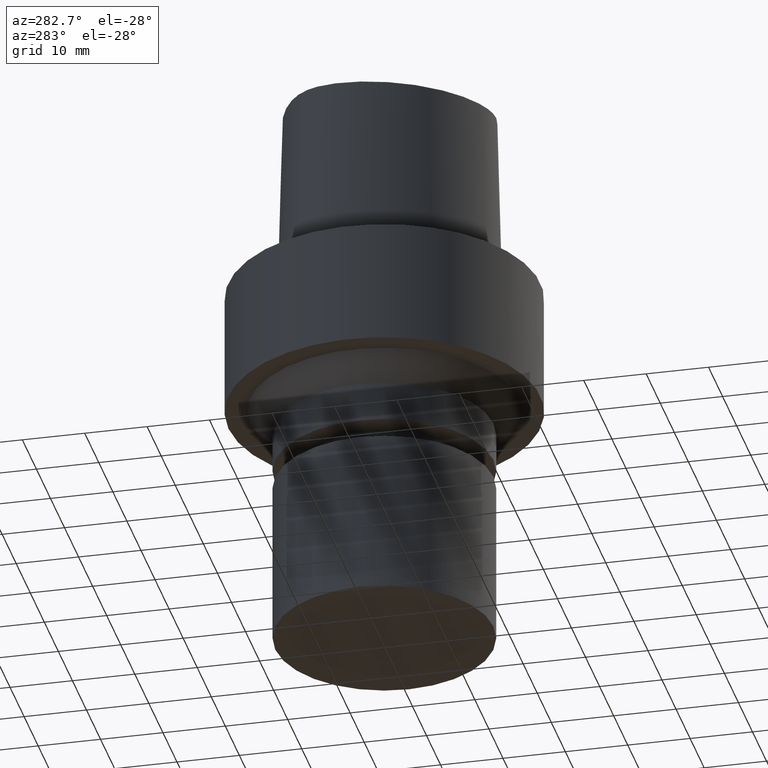
[diagram: clean part render]
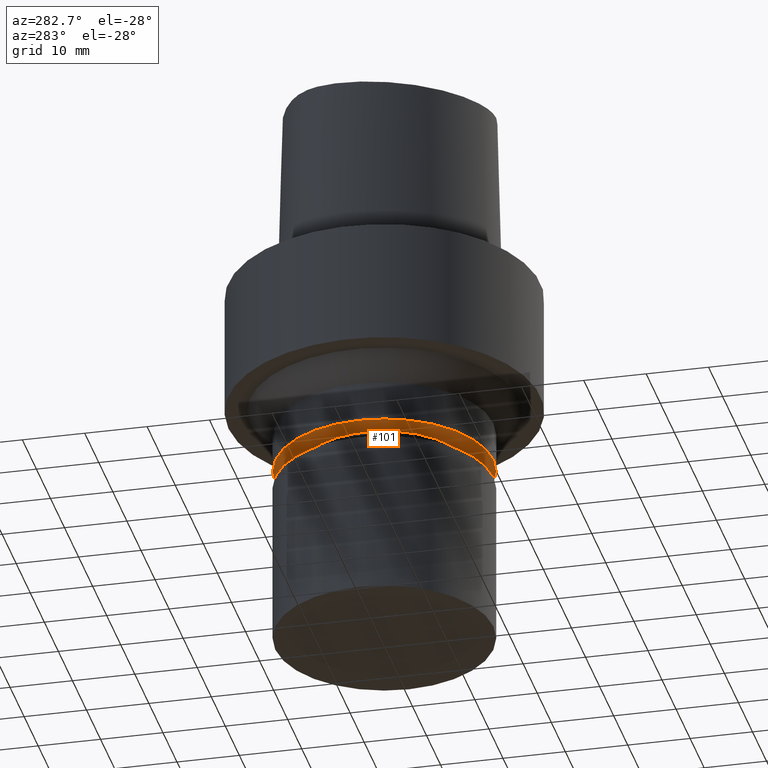
[diagram: same view with one face highlighted and labeled with its STEP entity id]
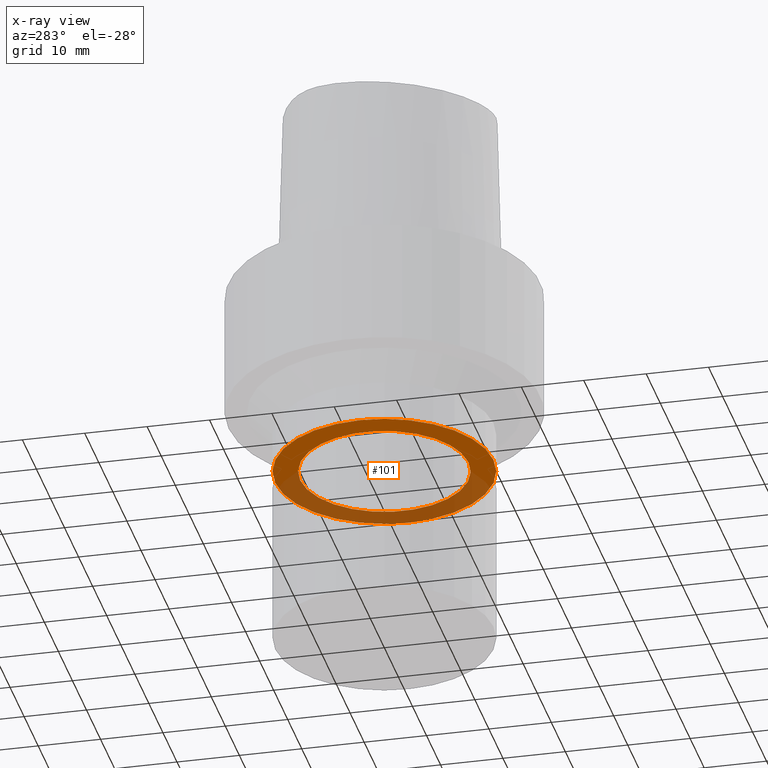
[diagram: x-ray of the same camera — body ghosted, the highlighted face saturated]
A machine part, auxiliary view. The second image highlights one B-rep face of the part: STEP entity #101.
The next image is the same camera in x-ray: the body ghosted, the highlighted face saturated — about 45% of this face is hidden behind the body in this view.
In plain terms, the highlighted planar face has unit normal (0, 0, -1).
Its self-contained STEP definition (entity closure, byte-faithful):
#78=EDGE_CURVE('Unnamed[1]',#186,#186,#187,.T.);
#101=ADVANCED_FACE('Unnamed[1]',(#222,#223),#224,.T.);
#116=EDGE_CURVE('Unnamed[1]',#246,#246,#247,.T.);
#186=VERTEX_POINT('',#326);
#187=CIRCLE('',#327,13.4999999999908);
#222=FACE_BOUND('',#418,.T.);
#223=FACE_OUTER_BOUND('',#419,.T.);
#224=PLANE('',#420);
#246=VERTEX_POINT('',#448);
#247=CIRCLE('',#449,17.5);
#326=CARTESIAN_POINT('',(1.8675863686997E-015,13.4999999999908,-30.4999999999998));
#327=AXIS2_PLACEMENT_3D('',#1008,#1009,#1010);
#418=EDGE_LOOP('',(#1047));
#419=EDGE_LOOP('',(#1048));
#420=AXIS2_PLACEMENT_3D('',#1049,#1050,#1051);
#448=CARTESIAN_POINT('',(1.8675863686997E-015,17.5,-30.4999999999998));
#449=AXIS2_PLACEMENT_3D('',#1075,#1076,#1077);
#1008=CARTESIAN_POINT('',(1.8675863686997E-015,3.7351727373994E-015,-30.4999999999998));
#1009=DIRECTION('',(6.12323399573677E-017,1.22464679914735E-016,-1.0));
#1010=DIRECTION('',(-1.23259516440783E-032,1.0,1.22464679914735E-016));
#1047=ORIENTED_EDGE('',*,*,#78,.F.);
#1048=ORIENTED_EDGE('',*,*,#116,.T.);
#1049=CARTESIAN_POINT('',(1.8675863686997E-015,15.4999999999954,-30.4999999999998));
#1050=DIRECTION('',(6.12323399573677E-017,1.22464679914735E-016,-1.0));
#1051=DIRECTION('',(-1.23259516440783E-032,1.0,1.22464679914735E-016));
#1075=CARTESIAN_POINT('',(1.8675863686997E-015,3.7351727373994E-015,-30.4999999999998));
#1076=DIRECTION('',(6.12323399573677E-017,1.22464679914735E-016,-1.0));
#1077=DIRECTION('',(-1.23259516440783E-032,1.0,1.22464679914735E-016));